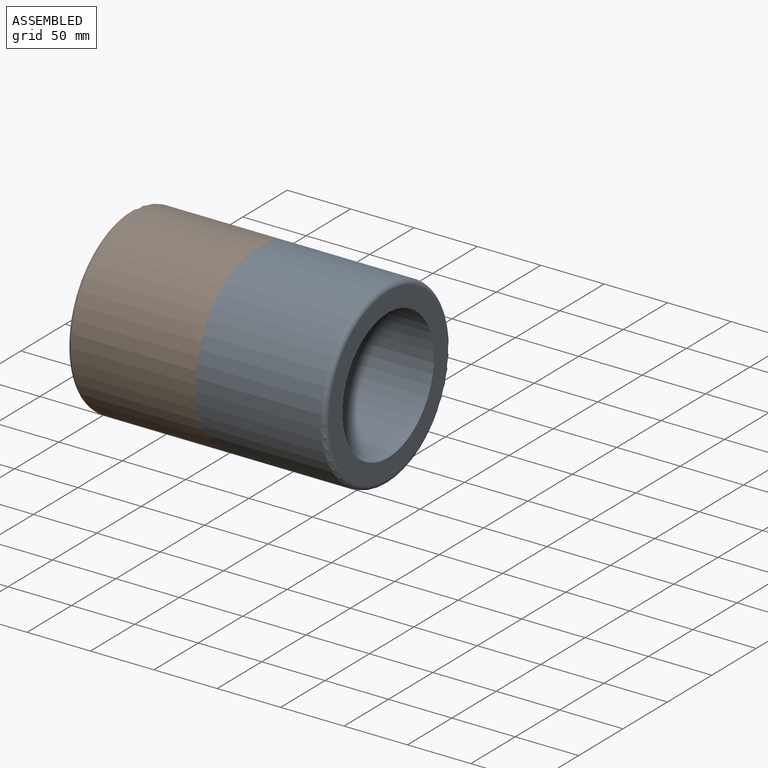
[diagram: assembled view]
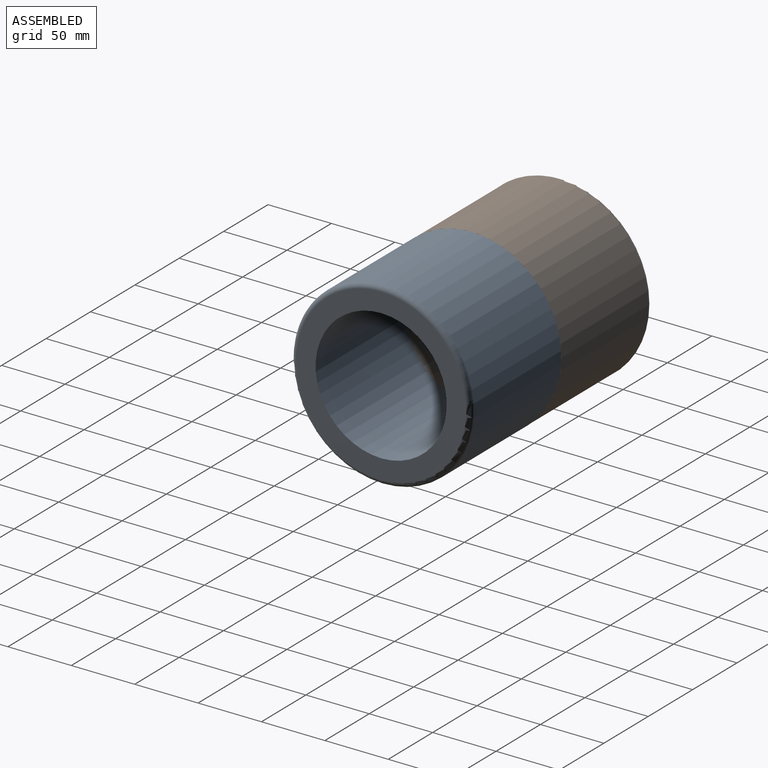
[diagram: assembled view, second angle]
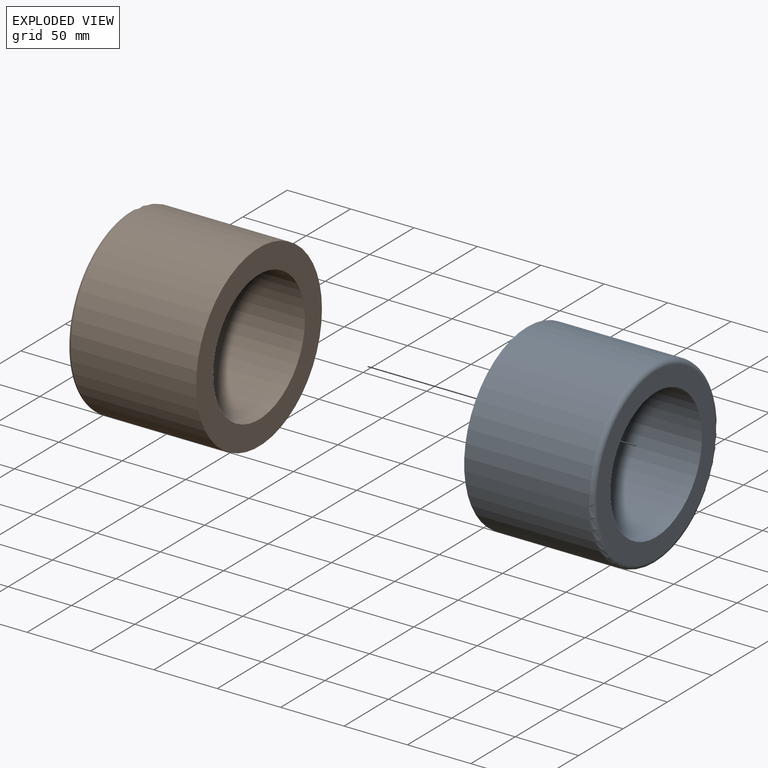
[diagram: exploded view]
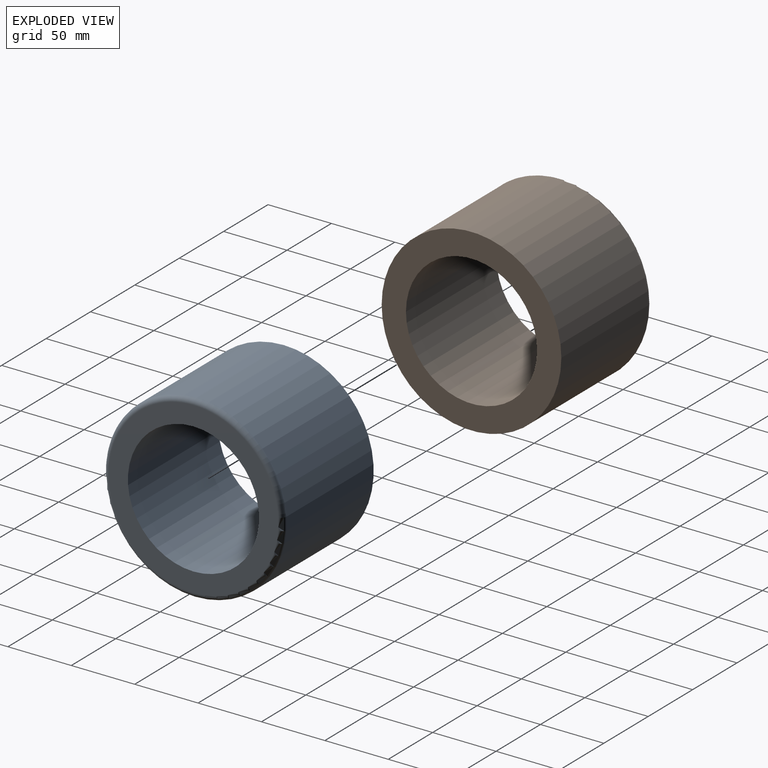
[diagram: exploded view, second angle]
ASSEMBLY  parts=2 mates=2
PART A: 5 faces, bbox 101.8x153.4x153.4 mm
  f0: cylinder r=51.71mm len=103.43mm, axis (-1,0,0), area 33077.2mm2, adj f2,f3
  f1: cylinder r=70.86mm len=141.72mm, axis (-1,0,0), area 43602.7mm2, adj f3,f4
  f2: plane 133.99x133.99mm, normal (1,0,0), area 5699mm2, adj f0,f4
  f3: plane 141.72x141.72mm, normal (-1,0,0), area 7371.8mm2, adj f0,f1
  f4: torus R=66.99mm, axis (1,0,0), area 2647.8mm2, adj f1,f2
PART B: same geometry as A
PLACE A t=(15.09,-38.85,-49.97)mm fixed
PLACE B rot(axis=(0,-0.71,0.71),180deg) t=(15.09,-38.85,-49.97)mm
MATE cylindrical B.f1 <-> A.f1  axis (1,0,0) through (-33.88,-38.85,-49.97)mm
MATE planar B.f1 <-> A.f1  axis (1,0,0) through (15.09,-38.85,-49.97)mm
